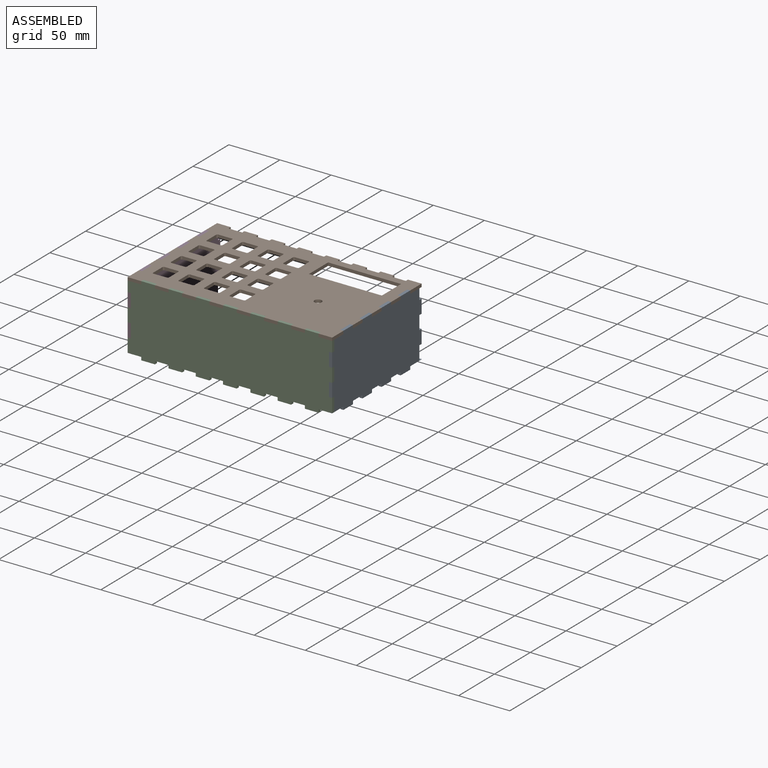
[diagram: assembled view]
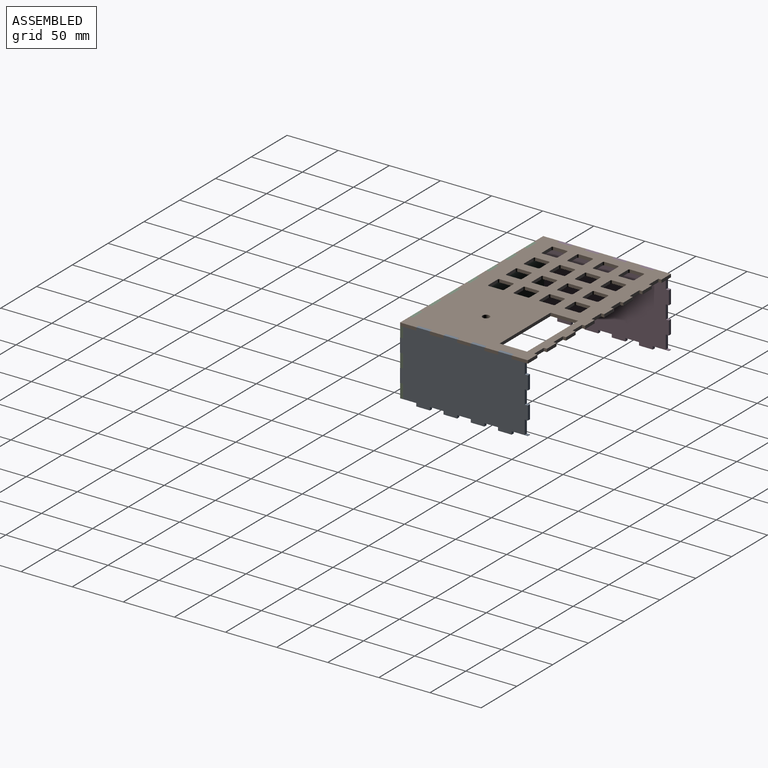
[diagram: assembled view, second angle]
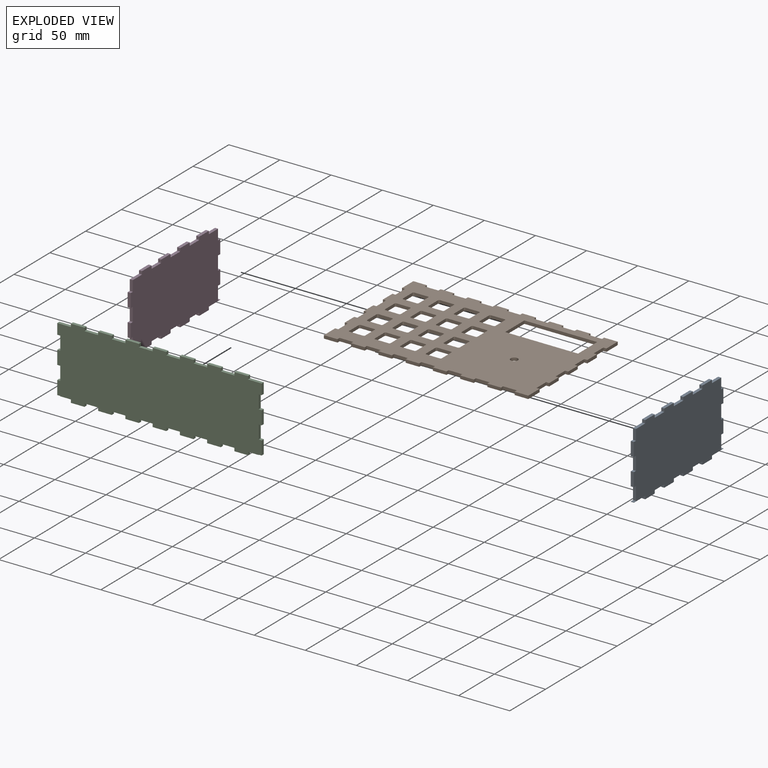
[diagram: exploded view]
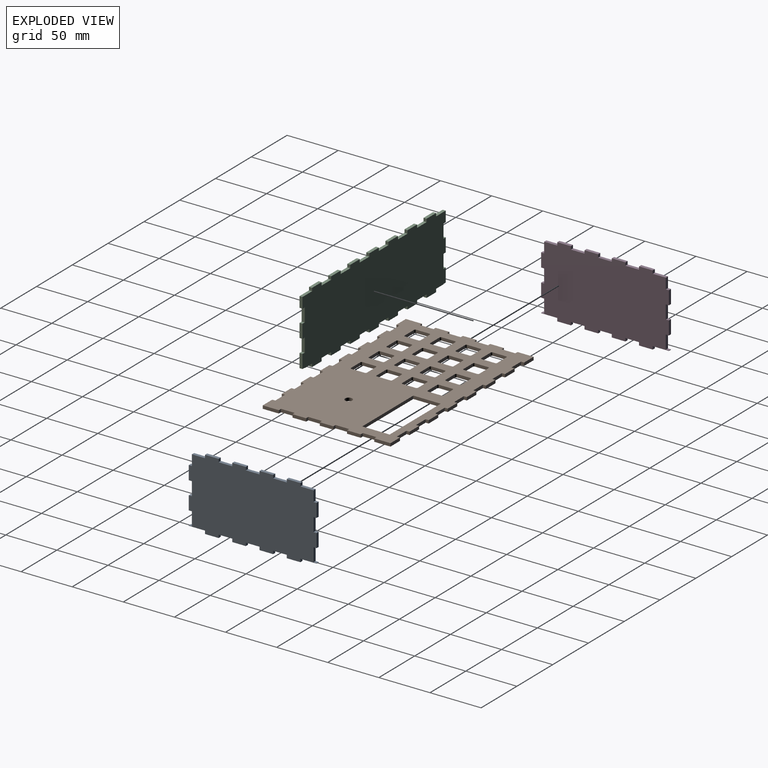
[diagram: exploded view, second angle]
ASSEMBLY  parts=4 mates=3
PART A: 58 faces, bbox 3x125x70 mm
  f0: plane 13.33x3mm, normal (0,-1,0), area 40mm2, adj f14,f15,f45,f50
  f1: plane 3x0.33mm, normal (0,-1,0), area 1mm2, adj f14,f15,f47,f54
  f2: plane 13.33x3mm, normal (0,-1,0), area 40mm2, adj f14,f15,f21,f48
  f3: plane 13.32x3mm, normal (0,0,-1), area 40mm2, adj f14,f15,f33,f51
  f4: plane 13.33x3mm, normal (0,0,-1), area 40mm2, adj f14,f15,f53,f57
  f5: plane 13.32x3mm, normal (0,0,-1), area 40mm2, adj f14,f15,f32,f34
  f6: plane 13.33x3mm, normal (0,0,-1), area 40mm2, adj f14,f15,f30,f55
  f7: plane 3x0.33mm, normal (0,1,0), area 1mm2, adj f14,f15,f43,f56
  f8: plane 13.33x3mm, normal (0,1,0), area 40mm2, adj f14,f15,f40,f42
  f9: plane 13.33x3mm, normal (0,1,0), area 40mm2, adj f14,f15,f26,f39
  f10: plane 13.33x3mm, normal (0,0,1), area 40mm2, adj f14,f15,f22,f36
  f11: plane 13.33x3mm, normal (0,0,1), area 40mm2, adj f14,f15,f17,f29
  f12: plane 13.32x3mm, normal (0,0,1), area 40mm2, adj f14,f15,f25,f37
  f13: plane 13.32x3mm, normal (0,0,1), area 40mm2, adj f14,f15,f16,f23
  f14: plane 125x70mm, normal (1,0,0), area 8097.8mm2, adj f0,f1,f2,f3,f4,f5,f6,f7
  f15: plane 125x70mm, normal (-1,0,0), area 8097.8mm2, adj f0,f1,f2,f3,f4,f5,f6,f7
  f16: plane 3x3mm, normal (0,1,0), area 9mm2, adj f13,f14,f15,f18
  f17: plane 3x3mm, normal (0,-1,0), area 9mm2, adj f11,f14,f15,f18
  f18: plane 13.33x3mm, normal (0,0,1), area 40mm2, adj f14,f15,f16,f17
  f19: plane 12.84x3mm, normal (0,0,1), area 38.5mm2, adj f14,f15,f20,f22
  f20: plane 10.33x3mm, normal (0,-1,0), area 31mm2, adj f14,f15,f19,f21
  f21: plane 3x3mm, normal (0,0,1), area 9mm2, adj f2,f14,f15,f20
  f22: plane 3x3mm, normal (0,-1,0), area 9mm2, adj f10,f14,f15,f19
  f23: plane 3x3mm, normal (0,-1,0), area 9mm2, adj f13,f14,f15,f24
  f24: plane 13.35x3mm, normal (0,0,1), area 40mm2, adj f14,f15,f23,f25
  f25: plane 3x3mm, normal (0,1,0), area 9mm2, adj f12,f14,f15,f24
  f26: plane 3x3mm, normal (0,0,1), area 9mm2, adj f9,f14,f15,f27
  f27: plane 10.33x3mm, normal (0,1,0), area 31mm2, adj f14,f15,f26,f28
  f28: plane 12.84x3mm, normal (0,0,1), area 38.5mm2, adj f14,f15,f27,f29
  f29: plane 3x3mm, normal (0,1,0), area 9mm2, adj f11,f14,f15,f28
  f30: plane 3x3mm, normal (0,1,0), area 9mm2, adj f6,f14,f15,f31
  f31: plane 13.33x3mm, normal (0,0,-1), area 40mm2, adj f14,f15,f30,f32
  f32: plane 3x3mm, normal (0,-1,0), area 9mm2, adj f5,f14,f15,f31
  f33: plane 3x3mm, normal (0,-1,0), area 9mm2, adj f3,f14,f15,f35
  f34: plane 3x3mm, normal (0,1,0), area 9mm2, adj f5,f14,f15,f35
  f35: plane 13.35x3mm, normal (0,0,-1), area 40mm2, adj f14,f15,f33,f34
  f36: plane 3x3mm, normal (0,1,0), area 9mm2, adj f10,f14,f15,f38
  f37: plane 3x3mm, normal (0,-1,0), area 9mm2, adj f12,f14,f15,f38
  f38: plane 13.33x3mm, normal (0,0,1), area 40mm2, adj f14,f15,f36,f37
  f39: plane 3x3mm, normal (0,0,-1), area 9mm2, adj f9,f14,f15,f41
  f40: plane 3x3mm, normal (0,0,1), area 9mm2, adj f8,f14,f15,f41
  f41: plane 13.33x3mm, normal (0,1,0), area 40mm2, adj f14,f15,f39,f40
  f42: plane 3x3mm, normal (0,0,-1), area 9mm2, adj f8,f14,f15,f44
  f43: plane 3x3mm, normal (0,0,1), area 9mm2, adj f7,f14,f15,f44
  f44: plane 13.33x3mm, normal (0,1,0), area 40mm2, adj f14,f15,f42,f43
  f45: plane 3x3mm, normal (0,0,-1), area 9mm2, adj f0,f14,f15,f46
  f46: plane 13.33x3mm, normal (0,-1,0), area 40mm2, adj f14,f15,f45,f47
  f47: plane 3x3mm, normal (0,0,1), area 9mm2, adj f1,f14,f15,f46
  f48: plane 3x3mm, normal (0,0,-1), area 9mm2, adj f2,f14,f15,f49
  f49: plane 13.33x3mm, normal (0,-1,0), area 40mm2, adj f14,f15,f48,f50
  f50: plane 3x3mm, normal (0,0,1), area 9mm2, adj f0,f14,f15,f49
  f51: plane 3x3mm, normal (0,1,0), area 9mm2, adj f3,f14,f15,f52
  f52: plane 13.33x3mm, normal (0,0,-1), area 40mm2, adj f14,f15,f51,f53
  f53: plane 3x3mm, normal (0,-1,0), area 9mm2, adj f4,f14,f15,f52
  f54: plane 15.84x3mm, normal (0,0,-1), area 47.5mm2, adj f1,f14,f15,f55
  f55: plane 3x3mm, normal (0,-1,0), area 9mm2, adj f6,f14,f15,f54
  f56: plane 15.84x3mm, normal (0,0,-1), area 47.5mm2, adj f7,f14,f15,f57
  f57: plane 3x3mm, normal (0,1,0), area 9mm2, adj f4,f14,f15,f56
PART B: 227 faces, bbox 200x125x3 mm
  f0: plane 13.33x3mm, normal (0,-1,0), area 40mm2, adj f22,f23,f195,f202
  f1: plane 13.33x3mm, normal (0,-1,0), area 40mm2, adj f22,f23,f185,f199
  f2: plane 13.33x3mm, normal (0,-1,0), area 40mm2, adj f22,f23,f189,f194
  f3: plane 13.33x3mm, normal (0,-1,0), area 40mm2, adj f22,f23,f193,f200
  f4: plane 13.33x3mm, normal (0,-1,0), area 40mm2, adj f22,f23,f188,f197
  f5: plane 13.33x3mm, normal (0,-1,0), area 40mm2, adj f22,f23,f27,f187
  f6: plane 13.33x3mm, normal (0,-1,0), area 40mm2, adj f22,f23,f169,f191
  f7: plane 13.33x3mm, normal (1,0,0), area 40mm2, adj f22,f23,f172,f177
  f8: plane 13.33x3mm, normal (1,0,0), area 40mm2, adj f22,f23,f166,f173
  f9: plane 13.33x3mm, normal (1,0,0), area 40mm2, adj f22,f23,f170,f175
  f10: plane 15.84x3mm, normal (1,0,0), area 47.5mm2, adj f22,f23,f26,f164
  f11: plane 13.33x3mm, normal (0,1,0), area 40mm2, adj f22,f23,f215,f219
  f12: plane 13.33x3mm, normal (0,1,0), area 40mm2, adj f22,f23,f212,f216
  f13: plane 13.33x3mm, normal (0,1,0), area 40mm2, adj f22,f23,f209,f213
  f14: plane 13.33x3mm, normal (0,1,0), area 40mm2, adj f22,f23,f206,f210
  f15: plane 13.33x3mm, normal (0,1,0), area 40mm2, adj f22,f23,f203,f207
  f16: plane 13.33x3mm, normal (0,1,0), area 40mm2, adj f22,f23,f161,f204
  f17: plane 13.33x3mm, normal (0,1,0), area 40mm2, adj f19,f22,f23,f162
  f18: plane 13.33x3mm, normal (-1,0,0), area 40mm2, adj f22,f23,f221,f224
  f19: plane 15.84x3mm, normal (-1,0,0), area 47.5mm2, adj f17,f22,f23,f223
  f20: plane 13.33x3mm, normal (-1,0,0), area 40mm2, adj f22,f23,f180,f182
  f21: plane 13.33x3mm, normal (-1,0,0), area 40mm2, adj f22,f23,f179,f225
  f22: plane 200x125mm, normal (0,0,1), area 18328.3mm2, adj f0,f1,f2,f3,f4,f5,f6,f7
  f23: plane 200x125mm, normal (0,0,-1), area 18328.3mm2, adj f0,f1,f2,f3,f4,f5,f6,f7
  f24: plane 13.33x3mm, normal (0,-1,0), area 40mm2, adj f22,f23,f25,f167
  f25: plane 15.83x3mm, normal (1,0,0), area 47.5mm2, adj f22,f23,f24,f176
  f26: plane 13.33x3mm, normal (0,1,0), area 40mm2, adj f10,f22,f23,f218
  f27: plane 15.83x3mm, normal (-1,0,0), area 47.5mm2, adj f5,f22,f23,f183
  f28: cylinder r=1.25mm len=3mm, axis (0,0,1), area 5.9mm2, adj f22,f23,f29,f35
  f29: plane 13.04x3mm, normal (0,-1,0), area 39.1mm2, adj f22,f23,f28,f30
  f30: cylinder r=1.25mm len=3mm, axis (0,0,1), area 5.9mm2, adj f22,f23,f29,f31
  f31: plane 13.04x3mm, normal (1,0,0), area 39.1mm2, adj f22,f23,f30,f32
  f32: cylinder r=1.25mm len=3mm, axis (0,0,1), area 5.9mm2, adj f22,f23,f31,f33
  f33: plane 13.04x3mm, normal (0,1,0), area 39.1mm2, adj f22,f23,f32,f34
  f34: cylinder r=1.25mm len=3mm, axis (0,0,1), area 5.9mm2, adj f22,f23,f33,f35
  f35: plane 13.04x3mm, normal (-1,0,0), area 39.1mm2, adj f22,f23,f28,f34
  f36: plane 13.04x3mm, normal (0,1,0), area 39.1mm2, adj f22,f23,f37,f43
  f37: cylinder r=1.25mm len=3mm, axis (0,0,1), area 5.9mm2, adj f22,f23,f36,f38
  f38: plane 13.04x3mm, normal (-1,0,0), area 39.1mm2, adj f22,f23,f37,f39
  f39: cylinder r=1.25mm len=3mm, axis (0,0,1), area 5.9mm2, adj f22,f23,f38,f40
  f40: plane 13.04x3mm, normal (0,-1,0), area 39.1mm2, adj f22,f23,f39,f41
  f41: cylinder r=1.25mm len=3mm, axis (0,0,1), area 5.9mm2, adj f22,f23,f40,f42
  f42: plane 13.04x3mm, normal (1,0,0), area 39.1mm2, adj f22,f23,f41,f43
  f43: cylinder r=1.25mm len=3mm, axis (0,0,1), area 5.9mm2, adj f22,f23,f36,f42
  f44: plane 13.04x3mm, normal (0,1,0), area 39.1mm2, adj f22,f23,f45,f51
  f45: cylinder r=1.25mm len=3mm, axis (0,0,1), area 5.9mm2, adj f22,f23,f44,f46
  f46: plane 13.04x3mm, normal (-1,0,0), area 39.1mm2, adj f22,f23,f45,f47
  f47: cylinder r=1.25mm len=3mm, axis (0,0,1), area 5.9mm2, adj f22,f23,f46,f48
  f48: plane 13.04x3mm, normal (0,-1,0), area 39.1mm2, adj f22,f23,f47,f49
  f49: cylinder r=1.25mm len=3mm, axis (0,0,1), area 5.9mm2, adj f22,f23,f48,f50
  f50: plane 13.04x3mm, normal (1,0,0), area 39.1mm2, adj f22,f23,f49,f51
  f51: cylinder r=1.25mm len=3mm, axis (0,0,1), area 5.9mm2, adj f22,f23,f44,f50
  f52: plane 13.04x3mm, normal (0,1,0), area 39.1mm2, adj f22,f23,f53,f59
  f53: cylinder r=1.25mm len=3mm, axis (0,0,1), area 5.9mm2, adj f22,f23,f52,f54
  f54: plane 13.04x3mm, normal (-1,0,0), area 39.1mm2, adj f22,f23,f53,f55
  f55: cylinder r=1.25mm len=3mm, axis (0,0,1), area 5.9mm2, adj f22,f23,f54,f56
  f56: plane 13.04x3mm, normal (0,-1,0), area 39.1mm2, adj f22,f23,f55,f57
  f57: cylinder r=1.25mm len=3mm, axis (0,0,1), area 5.9mm2, adj f22,f23,f56,f58
  f58: plane 13.04x3mm, normal (1,0,0), area 39.1mm2, adj f22,f23,f57,f59
  f59: cylinder r=1.25mm len=3mm, axis (0,0,1), area 5.9mm2, adj f22,f23,f52,f58
  f60: plane 13.04x3mm, normal (0,1,0), area 39.1mm2, adj f22,f23,f61,f67
  f61: cylinder r=1.25mm len=3mm, axis (0,0,1), area 5.9mm2, adj f22,f23,f60,f62
  f62: plane 13.04x3mm, normal (-1,0,0), area 39.1mm2, adj f22,f23,f61,f63
  f63: cylinder r=1.25mm len=3mm, axis (0,0,1), area 5.9mm2, adj f22,f23,f62,f64
  f64: plane 13.04x3mm, normal (0,-1,0), area 39.1mm2, adj f22,f23,f63,f65
  f65: cylinder r=1.25mm len=3mm, axis (0,0,1), area 5.9mm2, adj f22,f23,f64,f66
  f66: plane 13.04x3mm, normal (1,0,0), area 39.1mm2, adj f22,f23,f65,f67
  f67: cylinder r=1.25mm len=3mm, axis (0,0,1), area 5.9mm2, adj f22,f23,f60,f66
  f68: plane 13.04x3mm, normal (0,1,0), area 39.1mm2, adj f22,f23,f69,f75
  f69: cylinder r=1.25mm len=3mm, axis (0,0,1), area 5.9mm2, adj f22,f23,f68,f70
  f70: plane 13.04x3mm, normal (-1,0,0), area 39.1mm2, adj f22,f23,f69,f71
  f71: cylinder r=1.25mm len=3mm, axis (0,0,1), area 5.9mm2, adj f22,f23,f70,f72
  f72: plane 13.04x3mm, normal (0,-1,0), area 39.1mm2, adj f22,f23,f71,f73
  f73: cylinder r=1.25mm len=3mm, axis (0,0,1), area 5.9mm2, adj f22,f23,f72,f74
  f74: plane 13.04x3mm, normal (1,0,0), area 39.1mm2, adj f22,f23,f73,f75
  f75: cylinder r=1.25mm len=3mm, axis (0,0,1), area 5.9mm2, adj f22,f23,f68,f74
  f76: plane 13.04x3mm, normal (0,1,0), area 39.1mm2, adj f22,f23,f77,f83
  f77: cylinder r=1.25mm len=3mm, axis (0,0,1), area 5.9mm2, adj f22,f23,f76,f78
  f78: plane 13.04x3mm, normal (-1,0,0), area 39.1mm2, adj f22,f23,f77,f79
  f79: cylinder r=1.25mm len=3mm, axis (0,0,1), area 5.9mm2, adj f22,f23,f78,f80
  f80: plane 13.04x3mm, normal (0,-1,0), area 39.1mm2, adj f22,f23,f79,f81
  f81: cylinder r=1.25mm len=3mm, axis (0,0,1), area 5.9mm2, adj f22,f23,f80,f82
  f82: plane 13.04x3mm, normal (1,0,0), area 39.1mm2, adj f22,f23,f81,f83
  f83: cylinder r=1.25mm len=3mm, axis (0,0,1), area 5.9mm2, adj f22,f23,f76,f82
  f84: plane 13.04x3mm, normal (0,1,0), area 39.1mm2, adj f22,f23,f85,f91
  f85: cylinder r=1.25mm len=3mm, axis (0,0,1), area 5.9mm2, adj f22,f23,f84,f86
  f86: plane 13.04x3mm, normal (-1,0,0), area 39.1mm2, adj f22,f23,f85,f87
  f87: cylinder r=1.25mm len=3mm, axis (0,0,1), area 5.9mm2, adj f22,f23,f86,f88
  f88: plane 13.04x3mm, normal (0,-1,0), area 39.1mm2, adj f22,f23,f87,f89
  f89: cylinder r=1.25mm len=3mm, axis (0,0,1), area 5.9mm2, adj f22,f23,f88,f90
  f90: plane 13.04x3mm, normal (1,0,0), area 39.1mm2, adj f22,f23,f89,f91
  f91: cylinder r=1.25mm len=3mm, axis (0,0,1), area 5.9mm2, adj f22,f23,f84,f90
  f92: plane 13.04x3mm, normal (0,1,0), area 39.1mm2, adj f22,f23,f93,f99
  f93: cylinder r=1.25mm len=3mm, axis (0,0,1), area 5.9mm2, adj f22,f23,f92,f94
  f94: plane 13.04x3mm, normal (-1,0,0), area 39.1mm2, adj f22,f23,f93,f95
  f95: cylinder r=1.25mm len=3mm, axis (0,0,1), area 5.9mm2, adj f22,f23,f94,f96
  f96: plane 13.04x3mm, normal (0,-1,0), area 39.1mm2, adj f22,f23,f95,f97
  f97: cylinder r=1.25mm len=3mm, axis (0,0,1), area 5.9mm2, adj f22,f23,f96,f98
  f98: plane 13.04x3mm, normal (1,0,0), area 39.1mm2, adj f22,f23,f97,f99
  f99: cylinder r=1.25mm len=3mm, axis (0,0,1), area 5.9mm2, adj f22,f23,f92,f98
  f100: plane 13.04x3mm, normal (0,1,0), area 39.1mm2, adj f22,f23,f101,f107
  f101: cylinder r=1.25mm len=3mm, axis (0,0,1), area 5.9mm2, adj f22,f23,f100,f102
  f102: plane 13.04x3mm, normal (-1,0,0), area 39.1mm2, adj f22,f23,f101,f103
  f103: cylinder r=1.25mm len=3mm, axis (0,0,1), area 5.9mm2, adj f22,f23,f102,f104
  f104: plane 13.04x3mm, normal (0,-1,0), area 39.1mm2, adj f22,f23,f103,f105
  f105: cylinder r=1.25mm len=3mm, axis (0,0,1), area 5.9mm2, adj f22,f23,f104,f106
  f106: plane 13.04x3mm, normal (1,0,0), area 39.1mm2, adj f22,f23,f105,f107
  f107: cylinder r=1.25mm len=3mm, axis (0,0,1), area 5.9mm2, adj f22,f23,f100,f106
  f108: plane 13.04x3mm, normal (0,1,0), area 39.1mm2, adj f22,f23,f109,f115
  f109: cylinder r=1.25mm len=3mm, axis (0,0,1), area 5.9mm2, adj f22,f23,f108,f110
  f110: plane 13.04x3mm, normal (-1,0,0), area 39.1mm2, adj f22,f23,f109,f111
  f111: cylinder r=1.25mm len=3mm, axis (0,0,1), area 5.9mm2, adj f22,f23,f110,f112
  f112: plane 13.04x3mm, normal (0,-1,0), area 39.1mm2, adj f22,f23,f111,f113
  f113: cylinder r=1.25mm len=3mm, axis (0,0,1), area 5.9mm2, adj f22,f23,f112,f114
  f114: plane 13.04x3mm, normal (1,0,0), area 39.1mm2, adj f22,f23,f113,f115
  f115: cylinder r=1.25mm len=3mm, axis (0,0,1), area 5.9mm2, adj f22,f23,f108,f114
  f116: plane 13.04x3mm, normal (0,1,0), area 39.1mm2, adj f22,f23,f117,f123
  f117: cylinder r=1.25mm len=3mm, axis (0,0,1), area 5.9mm2, adj f22,f23,f116,f118
  f118: plane 13.04x3mm, normal (-1,0,0), area 39.1mm2, adj f22,f23,f117,f119
  f119: cylinder r=1.25mm len=3mm, axis (0,0,1), area 5.9mm2, adj f22,f23,f118,f120
  f120: plane 13.04x3mm, normal (0,-1,0), area 39.1mm2, adj f22,f23,f119,f121
  f121: cylinder r=1.25mm len=3mm, axis (0,0,1), area 5.9mm2, adj f22,f23,f120,f122
  f122: plane 13.04x3mm, normal (1,0,0), area 39.1mm2, adj f22,f23,f121,f123
  f123: cylinder r=1.25mm len=3mm, axis (0,0,1), area 5.9mm2, adj f22,f23,f116,f122
  f124: plane 13.04x3mm, normal (0,1,0), area 39.1mm2, adj f22,f23,f125,f131
  f125: cylinder r=1.25mm len=3mm, axis (0,0,1), area 5.9mm2, adj f22,f23,f124,f126
  f126: plane 13.04x3mm, normal (-1,0,0), area 39.1mm2, adj f22,f23,f125,f127
  f127: cylinder r=1.25mm len=3mm, axis (0,0,1), area 5.9mm2, adj f22,f23,f126,f128
  f128: plane 13.04x3mm, normal (0,-1,0), area 39.1mm2, adj f22,f23,f127,f129
  f129: cylinder r=1.25mm len=3mm, axis (0,0,1), area 5.9mm2, adj f22,f23,f128,f130
  f130: plane 13.04x3mm, normal (1,0,0), area 39.1mm2, adj f22,f23,f129,f131
  f131: cylinder r=1.25mm len=3mm, axis (0,0,1), area 5.9mm2, adj f22,f23,f124,f130
  f132: plane 13.04x3mm, normal (0,1,0), area 39.1mm2, adj f22,f23,f133,f139
  f133: cylinder r=1.25mm len=3mm, axis (0,0,1), area 5.9mm2, adj f22,f23,f132,f134
  f134: plane 13.04x3mm, normal (-1,0,0), area 39.1mm2, adj f22,f23,f133,f135
  f135: cylinder r=1.25mm len=3mm, axis (0,0,1), area 5.9mm2, adj f22,f23,f134,f136
  f136: plane 13.04x3mm, normal (0,-1,0), area 39.1mm2, adj f22,f23,f135,f137
  f137: cylinder r=1.25mm len=3mm, axis (0,0,1), area 5.9mm2, adj f22,f23,f136,f138
  f138: plane 13.04x3mm, normal (1,0,0), area 39.1mm2, adj f22,f23,f137,f139
  f139: cylinder r=1.25mm len=3mm, axis (0,0,1), area 5.9mm2, adj f22,f23,f132,f138
  f140: plane 13.04x3mm, normal (0,1,0), area 39.1mm2, adj f22,f23,f141,f147
  f141: cylinder r=1.25mm len=3mm, axis (0,0,1), area 5.9mm2, adj f22,f23,f140,f142
  f142: plane 13.04x3mm, normal (-1,0,0), area 39.1mm2, adj f22,f23,f141,f143
  f143: cylinder r=1.25mm len=3mm, axis (0,0,1), area 5.9mm2, adj f22,f23,f142,f144
  f144: plane 13.04x3mm, normal (0,-1,0), area 39.1mm2, adj f22,f23,f143,f145
  f145: cylinder r=1.25mm len=3mm, axis (0,0,1), area 5.9mm2, adj f22,f23,f144,f146
  f146: plane 13.04x3mm, normal (1,0,0), area 39.1mm2, adj f22,f23,f145,f147
  f147: cylinder r=1.25mm len=3mm, axis (0,0,1), area 5.9mm2, adj f22,f23,f140,f146
  f148: plane 13.04x3mm, normal (0,1,0), area 39.1mm2, adj f22,f23,f149,f155
  f149: cylinder r=1.25mm len=3mm, axis (0,0,1), area 5.9mm2, adj f22,f23,f148,f150
  f150: plane 13.04x3mm, normal (-1,0,0), area 39.1mm2, adj f22,f23,f149,f151
  f151: cylinder r=1.25mm len=3mm, axis (0,0,1), area 5.9mm2, adj f22,f23,f150,f152
  f152: plane 13.04x3mm, normal (0,-1,0), area 39.1mm2, adj f22,f23,f151,f153
  f153: cylinder r=1.25mm len=3mm, axis (0,0,1), area 5.9mm2, adj f22,f23,f152,f154
  f154: plane 13.04x3mm, normal (1,0,0), area 39.1mm2, adj f22,f23,f153,f155
  f155: cylinder r=1.25mm len=3mm, axis (0,0,1), area 5.9mm2, adj f22,f23,f148,f154
  f156: cylinder r=3.5mm len=7mm, axis (0,0,1), area 66mm2, adj f22,f23
  f157: plane 26.8x3mm, normal (-1,0,0), area 80.4mm2, adj f22,f23,f158,f160
  f158: plane 71.3x3mm, normal (0,-1,0), area 213.9mm2, adj f22,f23,f157,f159
  f159: plane 26.8x3mm, normal (1,0,0), area 80.4mm2, adj f22,f23,f158,f160
  f160: plane 71.3x3mm, normal (0,1,0), area 213.9mm2, adj f22,f23,f157,f159
  f161: plane 3x3mm, normal (-1,0,0), area 9mm2, adj f16,f22,f23,f163
  f162: plane 3x3mm, normal (1,0,0), area 9mm2, adj f17,f22,f23,f163
  f163: plane 13.33x3mm, normal (0,1,0), area 40mm2, adj f22,f23,f161,f162
  f164: plane 3x3mm, normal (0,-1,0), area 9mm2, adj f10,f22,f23,f165
  f165: plane 13.33x3mm, normal (1,0,0), area 40mm2, adj f22,f23,f164,f166
  f166: plane 3x3mm, normal (0,1,0), area 9mm2, adj f8,f22,f23,f165
  f167: plane 3x3mm, normal (-1,0,0), area 9mm2, adj f22,f23,f24,f168
  f168: plane 13.33x3mm, normal (0,-1,0), area 40mm2, adj f22,f23,f167,f169
  f169: plane 3x3mm, normal (1,0,0), area 9mm2, adj f6,f22,f23,f168
  f170: plane 3x3mm, normal (0,-1,0), area 9mm2, adj f9,f22,f23,f171
  f171: plane 13.33x3mm, normal (1,0,0), area 40mm2, adj f22,f23,f170,f172
  f172: plane 3x3mm, normal (0,1,0), area 9mm2, adj f7,f22,f23,f171
  f173: plane 3x3mm, normal (0,-1,0), area 9mm2, adj f8,f22,f23,f174
  f174: plane 13.33x3mm, normal (1,0,0), area 40mm2, adj f22,f23,f173,f175
  f175: plane 3x3mm, normal (0,1,0), area 9mm2, adj f9,f22,f23,f174
  f176: plane 3x3mm, normal (0,1,0), area 9mm2, adj f22,f23,f25,f178
  f177: plane 3x3mm, normal (0,-1,0), area 9mm2, adj f7,f22,f23,f178
  f178: plane 13.33x3mm, normal (1,0,0), area 40mm2, adj f22,f23,f176,f177
  f179: plane 3x3mm, normal (0,-1,0), area 9mm2, adj f21,f22,f23,f181
  f180: plane 3x3mm, normal (0,1,0), area 9mm2, adj f20,f22,f23,f181
  f181: plane 13.33x3mm, normal (-1,0,0), area 40mm2, adj f22,f23,f179,f180
  f182: plane 3x3mm, normal (0,-1,0), area 9mm2, adj f20,f22,f23,f184
  f183: plane 3x3mm, normal (0,1,0), area 9mm2, adj f22,f23,f27,f184
  f184: plane 13.33x3mm, normal (-1,0,0), area 40mm2, adj f22,f23,f182,f183
  f185: plane 3x3mm, normal (-1,0,0), area 9mm2, adj f1,f22,f23,f186
  f186: plane 13.33x3mm, normal (0,-1,0), area 40mm2, adj f22,f23,f185,f187
  f187: plane 3x3mm, normal (1,0,0), area 9mm2, adj f5,f22,f23,f186
  f188: plane 3x3mm, normal (1,0,0), area 9mm2, adj f4,f22,f23,f190
  f189: plane 3x3mm, normal (-1,0,0), area 9mm2, adj f2,f22,f23,f190
  f190: plane 13.33x3mm, normal (0,-1,0), area 40mm2, adj f22,f23,f188,f189
  f191: plane 3x3mm, normal (-1,0,0), area 9mm2, adj f6,f22,f23,f192
  f192: plane 13.33x3mm, normal (0,-1,0), area 40mm2, adj f22,f23,f191,f193
  f193: plane 3x3mm, normal (1,0,0), area 9mm2, adj f3,f22,f23,f192
  f194: plane 3x3mm, normal (1,0,0), area 9mm2, adj f2,f22,f23,f196
  f195: plane 3x3mm, normal (-1,0,0), area 9mm2, adj f0,f22,f23,f196
  f196: plane 13.33x3mm, normal (0,-1,0), area 40mm2, adj f22,f23,f194,f195
  f197: plane 3x3mm, normal (-1,0,0), area 9mm2, adj f4,f22,f23,f198
  f198: plane 13.33x3mm, normal (0,-1,0), area 40mm2, adj f22,f23,f197,f199
  f199: plane 3x3mm, normal (1,0,0), area 9mm2, adj f1,f22,f23,f198
  f200: plane 3x3mm, normal (-1,0,0), area 9mm2, adj f3,f22,f23,f201
  f201: plane 13.33x3mm, normal (0,-1,0), area 40mm2, adj f22,f23,f200,f202
  f202: plane 3x3mm, normal (1,0,0), area 9mm2, adj f0,f22,f23,f201
  f203: plane 3x3mm, normal (-1,0,0), area 9mm2, adj f15,f22,f23,f205
  f204: plane 3x3mm, normal (1,0,0), area 9mm2, adj f16,f22,f23,f205
  f205: plane 13.33x3mm, normal (0,1,0), area 40mm2, adj f22,f23,f203,f204
  f206: plane 3x3mm, normal (-1,0,0), area 9mm2, adj f14,f22,f23,f208
  f207: plane 3x3mm, normal (1,0,0), area 9mm2, adj f15,f22,f23,f208
  f208: plane 13.33x3mm, normal (0,1,0), area 40mm2, adj f22,f23,f206,f207
  f209: plane 3x3mm, normal (-1,0,0), area 9mm2, adj f13,f22,f23,f211
  f210: plane 3x3mm, normal (1,0,0), area 9mm2, adj f14,f22,f23,f211
  f211: plane 13.33x3mm, normal (0,1,0), area 40mm2, adj f22,f23,f209,f210
  f212: plane 3x3mm, normal (-1,0,0), area 9mm2, adj f12,f22,f23,f214
  f213: plane 3x3mm, normal (1,0,0), area 9mm2, adj f13,f22,f23,f214
  f214: plane 13.33x3mm, normal (0,1,0), area 40mm2, adj f22,f23,f212,f213
  f215: plane 3x3mm, normal (-1,0,0), area 9mm2, adj f11,f22,f23,f217
  f216: plane 3x3mm, normal (1,0,0), area 9mm2, adj f12,f22,f23,f217
  f217: plane 13.33x3mm, normal (0,1,0), area 40mm2, adj f22,f23,f215,f216
  f218: plane 3x3mm, normal (-1,0,0), area 9mm2, adj f22,f23,f26,f220
  f219: plane 3x3mm, normal (1,0,0), area 9mm2, adj f11,f22,f23,f220
  f220: plane 13.33x3mm, normal (0,1,0), area 40mm2, adj f22,f23,f218,f219
  f221: plane 3x3mm, normal (0,1,0), area 9mm2, adj f18,f22,f23,f222
  f222: plane 13.33x3mm, normal (-1,0,0), area 40mm2, adj f22,f23,f221,f223
  f223: plane 3x3mm, normal (0,-1,0), area 9mm2, adj f19,f22,f23,f222
  f224: plane 3x3mm, normal (0,-1,0), area 9mm2, adj f18,f22,f23,f226
  f225: plane 3x3mm, normal (0,1,0), area 9mm2, adj f21,f22,f23,f226
  f226: plane 13.33x3mm, normal (-1,0,0), area 40mm2, adj f22,f23,f224,f225
PART C: 82 faces, bbox 200x3x70 mm
  f0: plane 13.33x3mm, normal (1,0,0), area 40mm2, adj f6,f7,f76,f80
  f1: plane 10.33x3mm, normal (1,0,0), area 31mm2, adj f6,f7,f53,f77
  f2: plane 13.33x3mm, normal (1,0,0), area 40mm2, adj f6,f7,f66,f79
  f3: plane 13.33x3mm, normal (-1,0,0), area 40mm2, adj f6,f7,f68,f73
  f4: plane 13.33x3mm, normal (-1,0,0), area 40mm2, adj f6,f7,f70,f75
  f5: plane 10.33x3mm, normal (-1,0,0), area 31mm2, adj f6,f7,f24,f72
  f6: plane 200x70mm, normal (0,-1,0), area 13198mm2, adj f0,f1,f2,f3,f4,f5,f8,f9
  f7: plane 200x70mm, normal (0,1,0), area 13198mm2, adj f0,f1,f2,f3,f4,f5,f8,f9
  f8: plane 10.33x3mm, normal (0,0,-1), area 31mm2, adj f6,f7,f43,f69
  f9: plane 13.33x3mm, normal (0,0,-1), area 40mm2, adj f6,f7,f41,f56
  f10: plane 13.33x3mm, normal (0,0,-1), area 40mm2, adj f6,f7,f35,f40
  f11: plane 13.33x3mm, normal (0,0,-1), area 40mm2, adj f6,f7,f26,f39
  f12: plane 13.33x3mm, normal (0,0,-1), area 40mm2, adj f6,f7,f29,f34
  f13: plane 13.33x3mm, normal (0,0,-1), area 40mm2, adj f6,f7,f31,f43
  f14: plane 13.34x3mm, normal (0,0,-1), area 40mm2, adj f6,f7,f28,f37
  f15: plane 13.33x3mm, normal (0,0,-1), area 40mm2, adj f6,f7,f25,f32
  f16: plane 13.33x3mm, normal (0,0,1), area 40mm2, adj f6,f7,f59,f63
  f17: plane 13.34x3mm, normal (0,0,1), area 40mm2, adj f6,f7,f50,f60
  f18: plane 13.33x3mm, normal (0,0,1), area 40mm2, adj f6,f7,f57,f62
  f19: plane 13.33x3mm, normal (0,0,1), area 40mm2, adj f6,f7,f54,f65
  f20: plane 13.33x3mm, normal (0,0,1), area 40mm2, adj f6,f7,f47,f51
  f21: plane 13.33x3mm, normal (0,0,1), area 40mm2, adj f6,f7,f44,f48
  f22: plane 13.33x3mm, normal (0,0,1), area 40mm2, adj f6,f7,f23,f45
  f23: plane 3x3mm, normal (-1,0,0), area 9mm2, adj f6,f7,f22,f24
  f24: plane 13.33x3mm, normal (0,0,1), area 40mm2, adj f5,f6,f7,f23
  f25: plane 3x3mm, normal (1,0,0), area 9mm2, adj f6,f7,f15,f27
  f26: plane 3x3mm, normal (-1,0,0), area 9mm2, adj f6,f7,f11,f27
  f27: plane 13.33x3mm, normal (0,0,-1), area 40mm2, adj f6,f7,f25,f26
  f28: plane 3x3mm, normal (1,0,0), area 9mm2, adj f6,f7,f14,f30
  f29: plane 3x3mm, normal (-1,0,0), area 9mm2, adj f6,f7,f12,f30
  f30: plane 13.33x3mm, normal (0,0,-1), area 40mm2, adj f6,f7,f28,f29
  f31: plane 3x3mm, normal (1,0,0), area 9mm2, adj f6,f7,f13,f33
  f32: plane 3x3mm, normal (-1,0,0), area 9mm2, adj f6,f7,f15,f33
  f33: plane 13.33x3mm, normal (0,0,-1), area 40mm2, adj f6,f7,f31,f32
  f34: plane 3x3mm, normal (1,0,0), area 9mm2, adj f6,f7,f12,f36
  f35: plane 3x3mm, normal (-1,0,0), area 9mm2, adj f6,f7,f10,f36
  f36: plane 13.33x3mm, normal (0,0,-1), area 40mm2, adj f6,f7,f34,f35
  f37: plane 3x3mm, normal (-1,0,0), area 9mm2, adj f6,f7,f14,f38
  f38: plane 13.33x3mm, normal (0,0,-1), area 40mm2, adj f6,f7,f37,f39
  f39: plane 3x3mm, normal (1,0,0), area 9mm2, adj f6,f7,f11,f38
  f40: plane 3x3mm, normal (1,0,0), area 9mm2, adj f6,f7,f10,f42
  f41: plane 3x3mm, normal (-1,0,0), area 9mm2, adj f6,f7,f9,f42
  f42: plane 13.33x3mm, normal (0,0,-1), area 40mm2, adj f6,f7,f40,f41
  f43: plane 3x3mm, normal (-1,0,0), area 9mm2, adj f6,f7,f8,f13
  f44: plane 3x3mm, normal (-1,0,0), area 9mm2, adj f6,f7,f21,f46
  f45: plane 3x3mm, normal (1,0,0), area 9mm2, adj f6,f7,f22,f46
  f46: plane 13.33x3mm, normal (0,0,1), area 40mm2, adj f6,f7,f44,f45
  f47: plane 3x3mm, normal (-1,0,0), area 9mm2, adj f6,f7,f20,f49
  f48: plane 3x3mm, normal (1,0,0), area 9mm2, adj f6,f7,f21,f49
  f49: plane 13.33x3mm, normal (0,0,1), area 40mm2, adj f6,f7,f47,f48
  f50: plane 3x3mm, normal (-1,0,0), area 9mm2, adj f6,f7,f17,f52
  f51: plane 3x3mm, normal (1,0,0), area 9mm2, adj f6,f7,f20,f52
  f52: plane 13.33x3mm, normal (0,0,1), area 40mm2, adj f6,f7,f50,f51
  f53: plane 13.33x3mm, normal (0,0,1), area 40mm2, adj f1,f6,f7,f54
  f54: plane 3x3mm, normal (1,0,0), area 9mm2, adj f6,f7,f19,f53
  f55: plane 10.33x3mm, normal (0,0,-1), area 31mm2, adj f6,f7,f56,f67
  f56: plane 3x3mm, normal (1,0,0), area 9mm2, adj f6,f7,f9,f55
  f57: plane 3x3mm, normal (1,0,0), area 9mm2, adj f6,f7,f18,f58
  f58: plane 13.33x3mm, normal (0,0,1), area 40mm2, adj f6,f7,f57,f59
  f59: plane 3x3mm, normal (-1,0,0), area 9mm2, adj f6,f7,f16,f58
  f60: plane 3x3mm, normal (1,0,0), area 9mm2, adj f6,f7,f17,f61
  f61: plane 13.33x3mm, normal (0,0,1), area 40mm2, adj f6,f7,f60,f62
  f62: plane 3x3mm, normal (-1,0,0), area 9mm2, adj f6,f7,f18,f61
  f63: plane 3x3mm, normal (1,0,0), area 9mm2, adj f6,f7,f16,f64
  f64: plane 13.33x3mm, normal (0,0,1), area 40mm2, adj f6,f7,f63,f65
  f65: plane 3x3mm, normal (-1,0,0), area 9mm2, adj f6,f7,f19,f64
  f66: plane 3x3mm, normal (0,0,-1), area 9mm2, adj f2,f6,f7,f67
  f67: plane 3x0.33mm, normal (1,0,0), area 1mm2, adj f6,f7,f55,f66
  f68: plane 3x3mm, normal (0,0,-1), area 9mm2, adj f3,f6,f7,f69
  f69: plane 3x0.33mm, normal (-1,0,0), area 1mm2, adj f6,f7,f8,f68
  f70: plane 3x3mm, normal (0,0,1), area 9mm2, adj f4,f6,f7,f71
  f71: plane 13.33x3mm, normal (-1,0,0), area 40mm2, adj f6,f7,f70,f72
  f72: plane 3x3mm, normal (0,0,-1), area 9mm2, adj f5,f6,f7,f71
  f73: plane 3x3mm, normal (0,0,1), area 9mm2, adj f3,f6,f7,f74
  f74: plane 13.33x3mm, normal (-1,0,0), area 40mm2, adj f6,f7,f73,f75
  f75: plane 3x3mm, normal (0,0,-1), area 9mm2, adj f4,f6,f7,f74
  f76: plane 3x3mm, normal (0,0,1), area 9mm2, adj f0,f6,f7,f78
  f77: plane 3x3mm, normal (0,0,-1), area 9mm2, adj f1,f6,f7,f78
  f78: plane 13.33x3mm, normal (1,0,0), area 40mm2, adj f6,f7,f76,f77
  f79: plane 3x3mm, normal (0,0,1), area 9mm2, adj f2,f6,f7,f81
  f80: plane 3x3mm, normal (0,0,-1), area 9mm2, adj f0,f6,f7,f81
  f81: plane 13.33x3mm, normal (1,0,0), area 40mm2, adj f6,f7,f79,f80
PART D: same geometry as A
PLACE A t=(115.25,80.94,-170.9)mm
PLACE B t=(18.25,80.95,-138.9)mm fixed
PLACE C t=(18.25,21.45,-170.9)mm
PLACE D t=(-81.75,80.95,-170.9)mm
MATE fastened D.f14 <-> B.f222  axis (1,0,0) through (-78.75,120.94,-135.9)mm
MATE fastened A.f15 <-> B.f178  axis (-1,0,0) through (115.25,40.94,-135.9)mm
MATE fastened C.f7 <-> B.f168  axis (0,1,0) through (98.25,21.45,-135.9)mm
